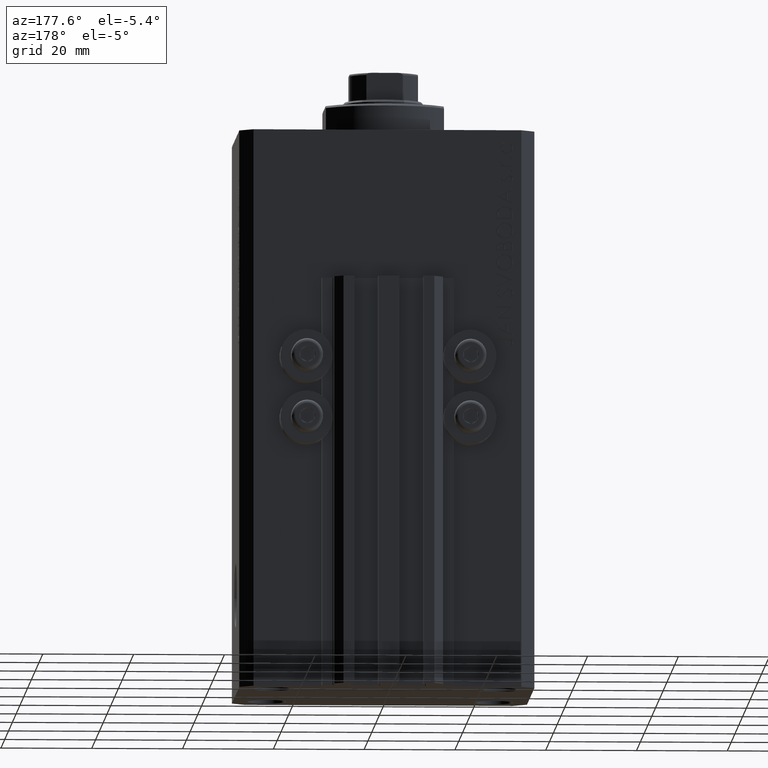
[diagram: clean part render]
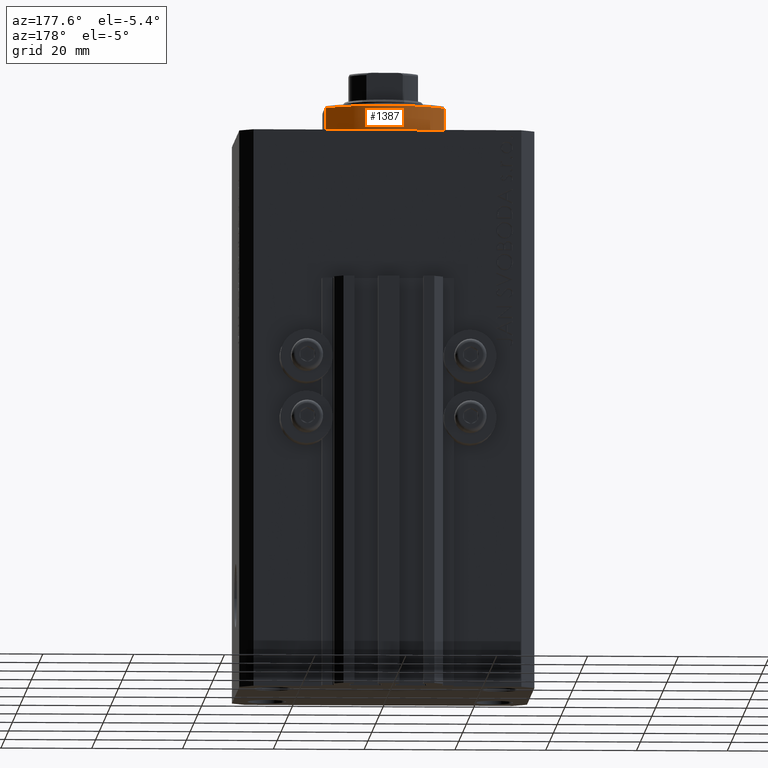
[diagram: same view with one face highlighted and labeled with its STEP entity id]
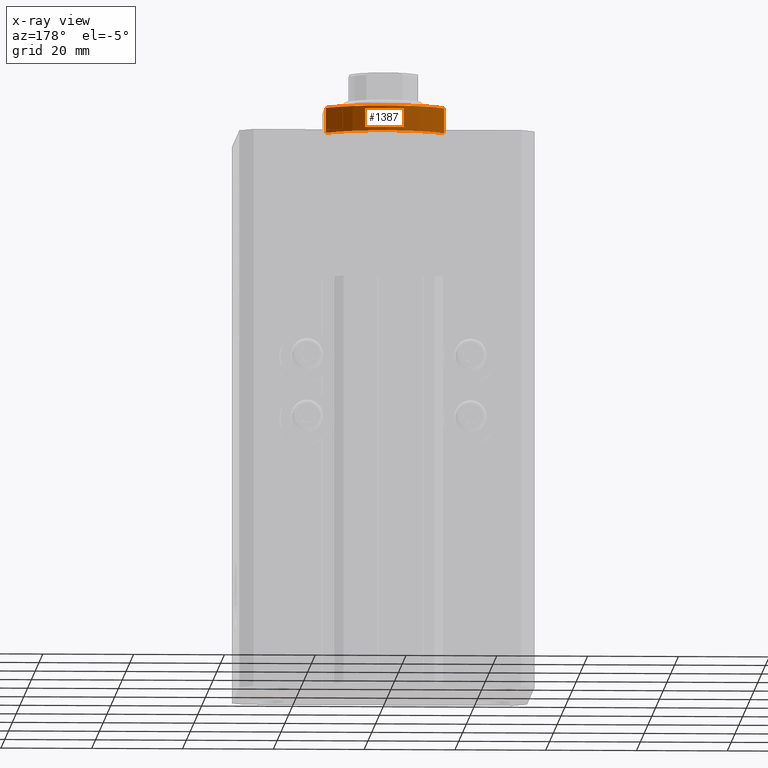
[diagram: x-ray of the same camera — body ghosted, the highlighted face saturated]
A machine part, auxiliary view. The second image highlights one B-rep face of the part: STEP entity #1387.
The next image is the same camera in x-ray: the body ghosted, the highlighted face saturated — about 0% of this face is hidden behind the body in this view.
In plain terms, the highlighted cylindrical surface (partial cylindrical patch) has radius 16 mm, axis along (0, 0, -1).
Its self-contained STEP definition (entity closure, byte-faithful):
#344 = CARTESIAN_POINT ( 'NONE',  ( 0.000000000000000000, 0.000000000000000000, -6.000000000000023981 ) ) ;
#1387 = ADVANCED_FACE ( 'NONE', ( #41838 ), #12260, .T. ) ;
#3180 = ORIENTED_EDGE ( 'NONE', *, *, #11664, .F. ) ;
#4232 = CARTESIAN_POINT ( 'NONE',  ( 13.00000000000000000, 9.327379053088815652, -0.4999999999999995559 ) ) ;
#5558 = DIRECTION ( 'NONE',  ( -0.000000000000000000, -0.000000000000000000, 1.000000000000000000 ) ) ;
#5576 = EDGE_LOOP ( 'NONE', ( #3180, #42273, #36300, #45677 ) ) ;
#6567 = CARTESIAN_POINT ( 'NONE',  ( -13.00000000000000000, 9.327379053088916905, -6.000000000000014211 ) ) ;
#7759 = VECTOR ( 'NONE', #40084, 1000.000000000000000 ) ;
#10436 = EDGE_CURVE ( 'NONE', #24161, #32450, #25519, .T. ) ;
#11664 = EDGE_CURVE ( 'NONE', #33124, #45520, #43142, .T. ) ;
#12260 = CYLINDRICAL_SURFACE ( 'NONE', #18185, 16.00000000000000000 ) ;
#12792 = AXIS2_PLACEMENT_3D ( 'NONE', #344, #37796, #19187 ) ;
#14046 = DIRECTION ( 'NONE',  ( -0.000000000000000000, -0.000000000000000000, 1.000000000000000000 ) ) ;
#16338 = VECTOR ( 'NONE', #14046, 1000.000000000000000 ) ;
#18185 = AXIS2_PLACEMENT_3D ( 'NONE', #27266, #5558, #41368 ) ;
#19187 = DIRECTION ( 'NONE',  ( -1.000000000000000000, 0.000000000000000000, 0.000000000000000000 ) ) ;
#19529 = EDGE_CURVE ( 'NONE', #33124, #24161, #41741, .T. ) ;
#21614 = DIRECTION ( 'NONE',  ( 1.000000000000000000, -8.881784197001252323E-16, 0.000000000000000000 ) ) ;
#24161 = VERTEX_POINT ( 'NONE', #6567 ) ;
#25196 = CARTESIAN_POINT ( 'NONE',  ( 0.000000000000000000, 0.000000000000000000, -0.4999999999999995559 ) ) ;
#25519 = LINE ( 'NONE', #43886, #7759 ) ;
#27266 = CARTESIAN_POINT ( 'NONE',  ( 0.000000000000000000, 0.000000000000000000, -6.500000000000000000 ) ) ;
#31358 = CIRCLE ( 'NONE', #44320, 16.00000000000000000 ) ;
#32450 = VERTEX_POINT ( 'NONE', #37536 ) ;
#33067 = DIRECTION ( 'NONE',  ( -0.000000000000000000, -0.000000000000000000, -1.000000000000000000 ) ) ;
#33124 = VERTEX_POINT ( 'NONE', #46409 ) ;
#36300 = ORIENTED_EDGE ( 'NONE', *, *, #10436, .T. ) ;
#37305 = EDGE_CURVE ( 'NONE', #32450, #45520, #31358, .T. ) ;
#37536 = CARTESIAN_POINT ( 'NONE',  ( -13.00000000000000000, 9.327379053088815652, -0.4999999999999995559 ) ) ;
#37796 = DIRECTION ( 'NONE',  ( 0.000000000000000000, 0.000000000000000000, 1.000000000000000000 ) ) ;
#40084 = DIRECTION ( 'NONE',  ( -0.000000000000000000, -0.000000000000000000, 1.000000000000000000 ) ) ;
#41368 = DIRECTION ( 'NONE',  ( 1.000000000000000000, 0.000000000000000000, 0.000000000000000000 ) ) ;
#41741 = CIRCLE ( 'NONE', #12792, 16.00000000000000000 ) ;
#41838 = FACE_OUTER_BOUND ( 'NONE', #5576, .T. ) ;
#42273 = ORIENTED_EDGE ( 'NONE', *, *, #19529, .T. ) ;
#43142 = LINE ( 'NONE', #46472, #16338 ) ;
#43886 = CARTESIAN_POINT ( 'NONE',  ( -13.00000000000000000, 9.327379053088813876, -6.500000000000000000 ) ) ;
#44320 = AXIS2_PLACEMENT_3D ( 'NONE', #25196, #33067, #21614 ) ;
#45520 = VERTEX_POINT ( 'NONE', #4232 ) ;
#45677 = ORIENTED_EDGE ( 'NONE', *, *, #37305, .T. ) ;
#46409 = CARTESIAN_POINT ( 'NONE',  ( 13.00000000000000000, 9.327379053088916905, -6.000000000000014211 ) ) ;
#46472 = CARTESIAN_POINT ( 'NONE',  ( 13.00000000000000000, 9.327379053088813876, -6.500000000000000000 ) ) ;